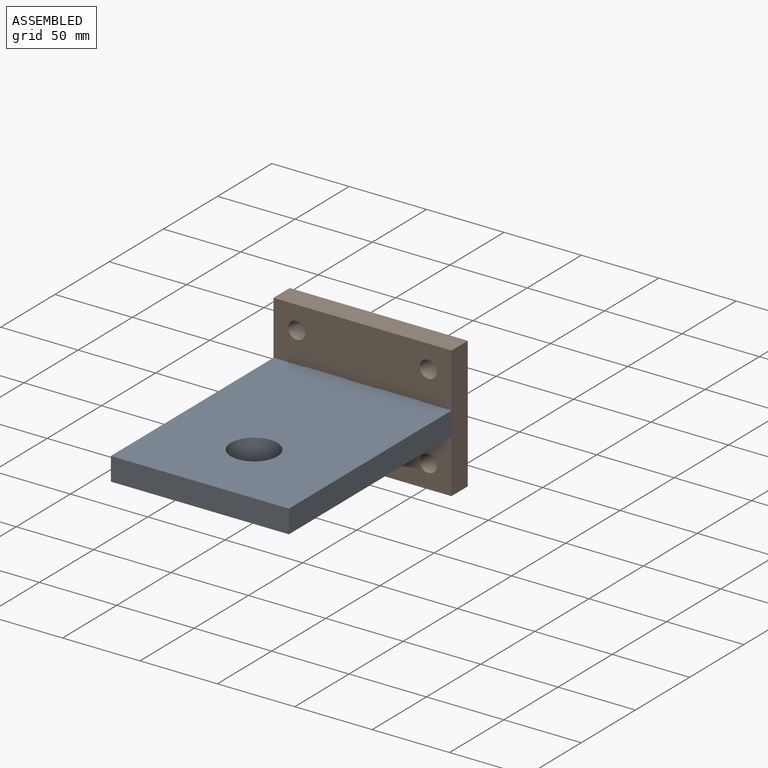
[diagram: assembled view]
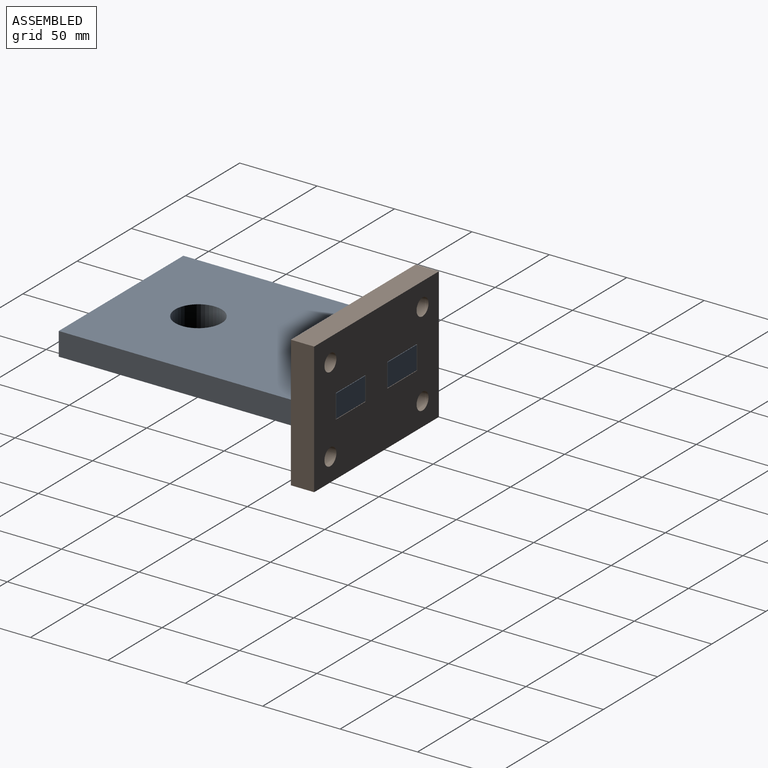
[diagram: assembled view, second angle]
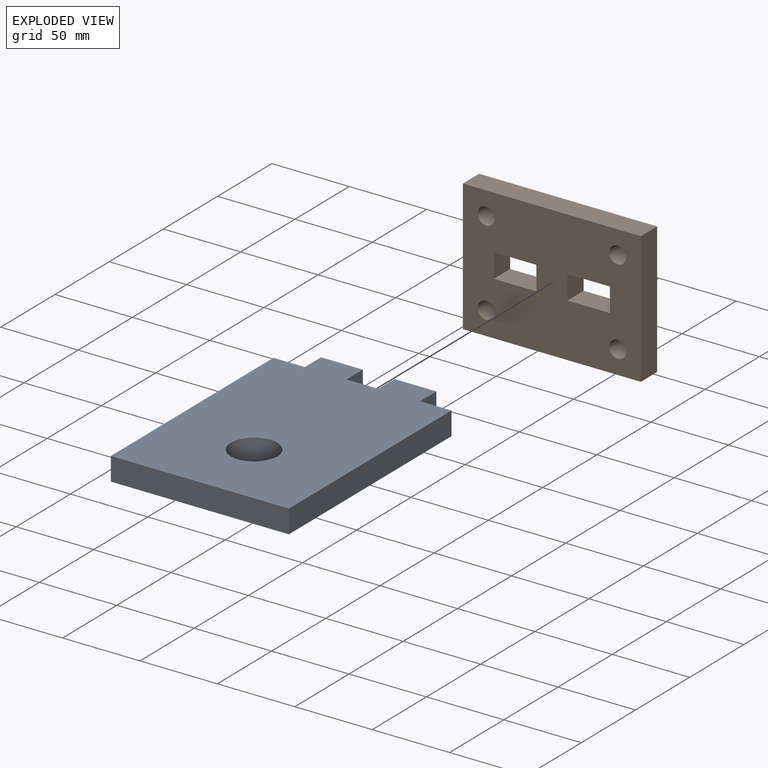
[diagram: exploded view]
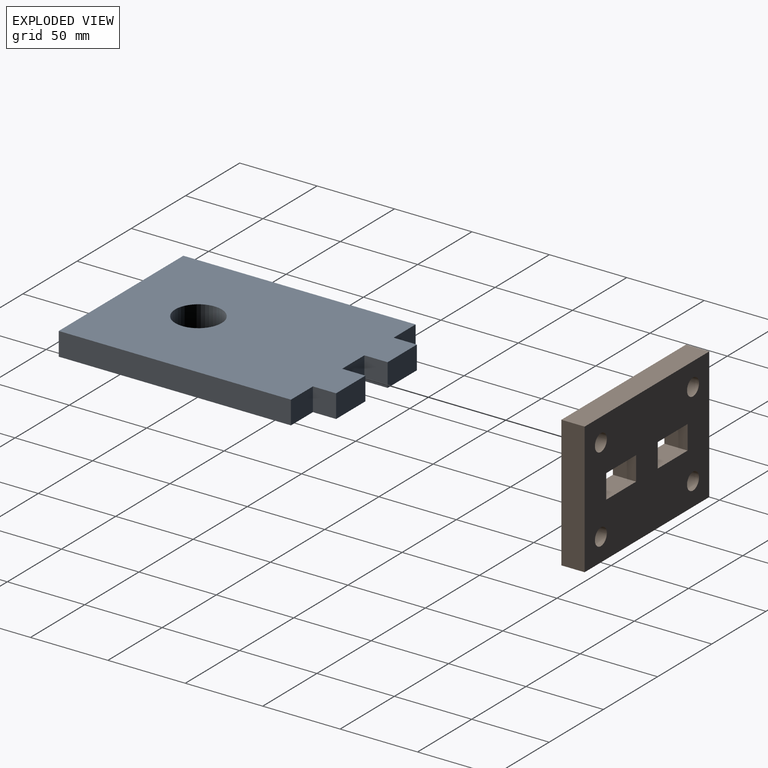
[diagram: exploded view, second angle]
ASSEMBLY  parts=2 mates=2
PART A: 15 faces, bbox 115x15x165 mm
  f0: plane 15x15mm, normal (-1,0,0), area 225mm2, adj f1,f11,f13,f14
  f1: plane 20.5x15mm, normal (0,0,1), area 307.5mm2, adj f0,f2,f13,f14
  f2: plane 15x15mm, normal (1,0,0), area 225mm2, adj f1,f3,f13,f14
  f3: plane 27x15mm, normal (0,0,1), area 405mm2, adj f2,f4,f13,f14
  f4: plane 15x15mm, normal (-1,0,0), area 225mm2, adj f3,f5,f13,f14
  f5: plane 20.25x15mm, normal (0,0,1), area 303.8mm2, adj f4,f6,f13,f14
  f6: plane 150x15mm, normal (-1,0,0), area 2250mm2, adj f5,f7,f13,f14
  f7: plane 115x15mm, normal (0,0,-1), area 1725mm2, adj f6,f8,f13,f14
  f8: plane 150x15mm, normal (1,0,0), area 2250mm2, adj f7,f9,f13,f14
  f9: plane 20.25x15mm, normal (0,0,1), area 303.8mm2, adj f8,f10,f13,f14
  f10: plane 15x15mm, normal (1,0,0), area 225mm2, adj f9,f11,f13,f14
  f11: plane 27x15mm, normal (0,0,1), area 405mm2, adj f0,f10,f13,f14
  f12: cylinder r=15mm len=30mm, axis (0,1,0), area 1413.7mm2, adj f13,f14
  f13: plane 165x115mm, normal (0,-1,0), area 17353.1mm2, adj f0,f1,f2,f3,f4,f5,f6,f7
  f14: plane 165x115mm, normal (0,1,0), area 17353.1mm2, adj f0,f1,f2,f3,f4,f5,f6,f7
PART B: 18 faces, bbox 115x15x85 mm
  f0: plane 115x15mm, normal (0,0,-1), area 1725mm2, adj f1,f15,f16,f17
  f1: plane 85x15mm, normal (1,0,0), area 1275mm2, adj f0,f2,f16,f17
  f2: plane 115x15mm, normal (0,0,1), area 1725mm2, adj f1,f15,f16,f17
  f3: plane 15.5x15mm, normal (1,0,0), area 232.5mm2, adj f4,f9,f16,f17
  f4: plane 27.5x15mm, normal (0,0,-1), area 412.5mm2, adj f3,f5,f16,f17
  f5: plane 15.5x15mm, normal (-1,0,0), area 232.5mm2, adj f4,f9,f16,f17
  f6: plane 27.5x15mm, normal (0,0,1), area 412.5mm2, adj f7,f14,f16,f17
  f7: plane 15.5x15mm, normal (1,0,0), area 232.5mm2, adj f6,f8,f16,f17
  f8: plane 27.5x15mm, normal (0,0,-1), area 412.5mm2, adj f7,f14,f16,f17
  f9: plane 27.5x15mm, normal (0,0,1), area 412.5mm2, adj f3,f5,f16,f17
  f10: cylinder r=5.5mm len=15mm, axis (0,1,0), area 518.4mm2, adj f16,f17
  f11: cylinder r=5.5mm len=15mm, axis (0,1,0), area 518.4mm2, adj f16,f17
  f12: cylinder r=5.5mm len=15mm, axis (0,1,0), area 518.4mm2, adj f16,f17
  f13: cylinder r=5.5mm len=15mm, axis (0,1,0), area 518.4mm2, adj f16,f17
  f14: plane 15.5x15mm, normal (-1,0,0), area 232.5mm2, adj f6,f8,f16,f17
  f15: plane 85x15mm, normal (-1,0,0), area 1275mm2, adj f0,f2,f16,f17
  f16: plane 115x85mm, normal (0,-1,0), area 8542.4mm2, adj f0,f1,f2,f3,f4,f5,f6,f7
  f17: plane 115x85mm, normal (0,1,0), area 8542.4mm2, adj f0,f1,f2,f3,f4,f5,f6,f7
PLACE A rot(axis=(-1,0,0),90deg) t=(-36.73,-17.27,18.59)mm
PLACE B t=(-36.73,72.73,26.09)mm
MATE planar A.f5 <-> B.f16  axis (0,1,0) through (-84.11,57.73,26.09)mm
MATE planar A.f8 <-> B.f1  axis (1,0,0) through (20.77,-17.27,26.09)mm
